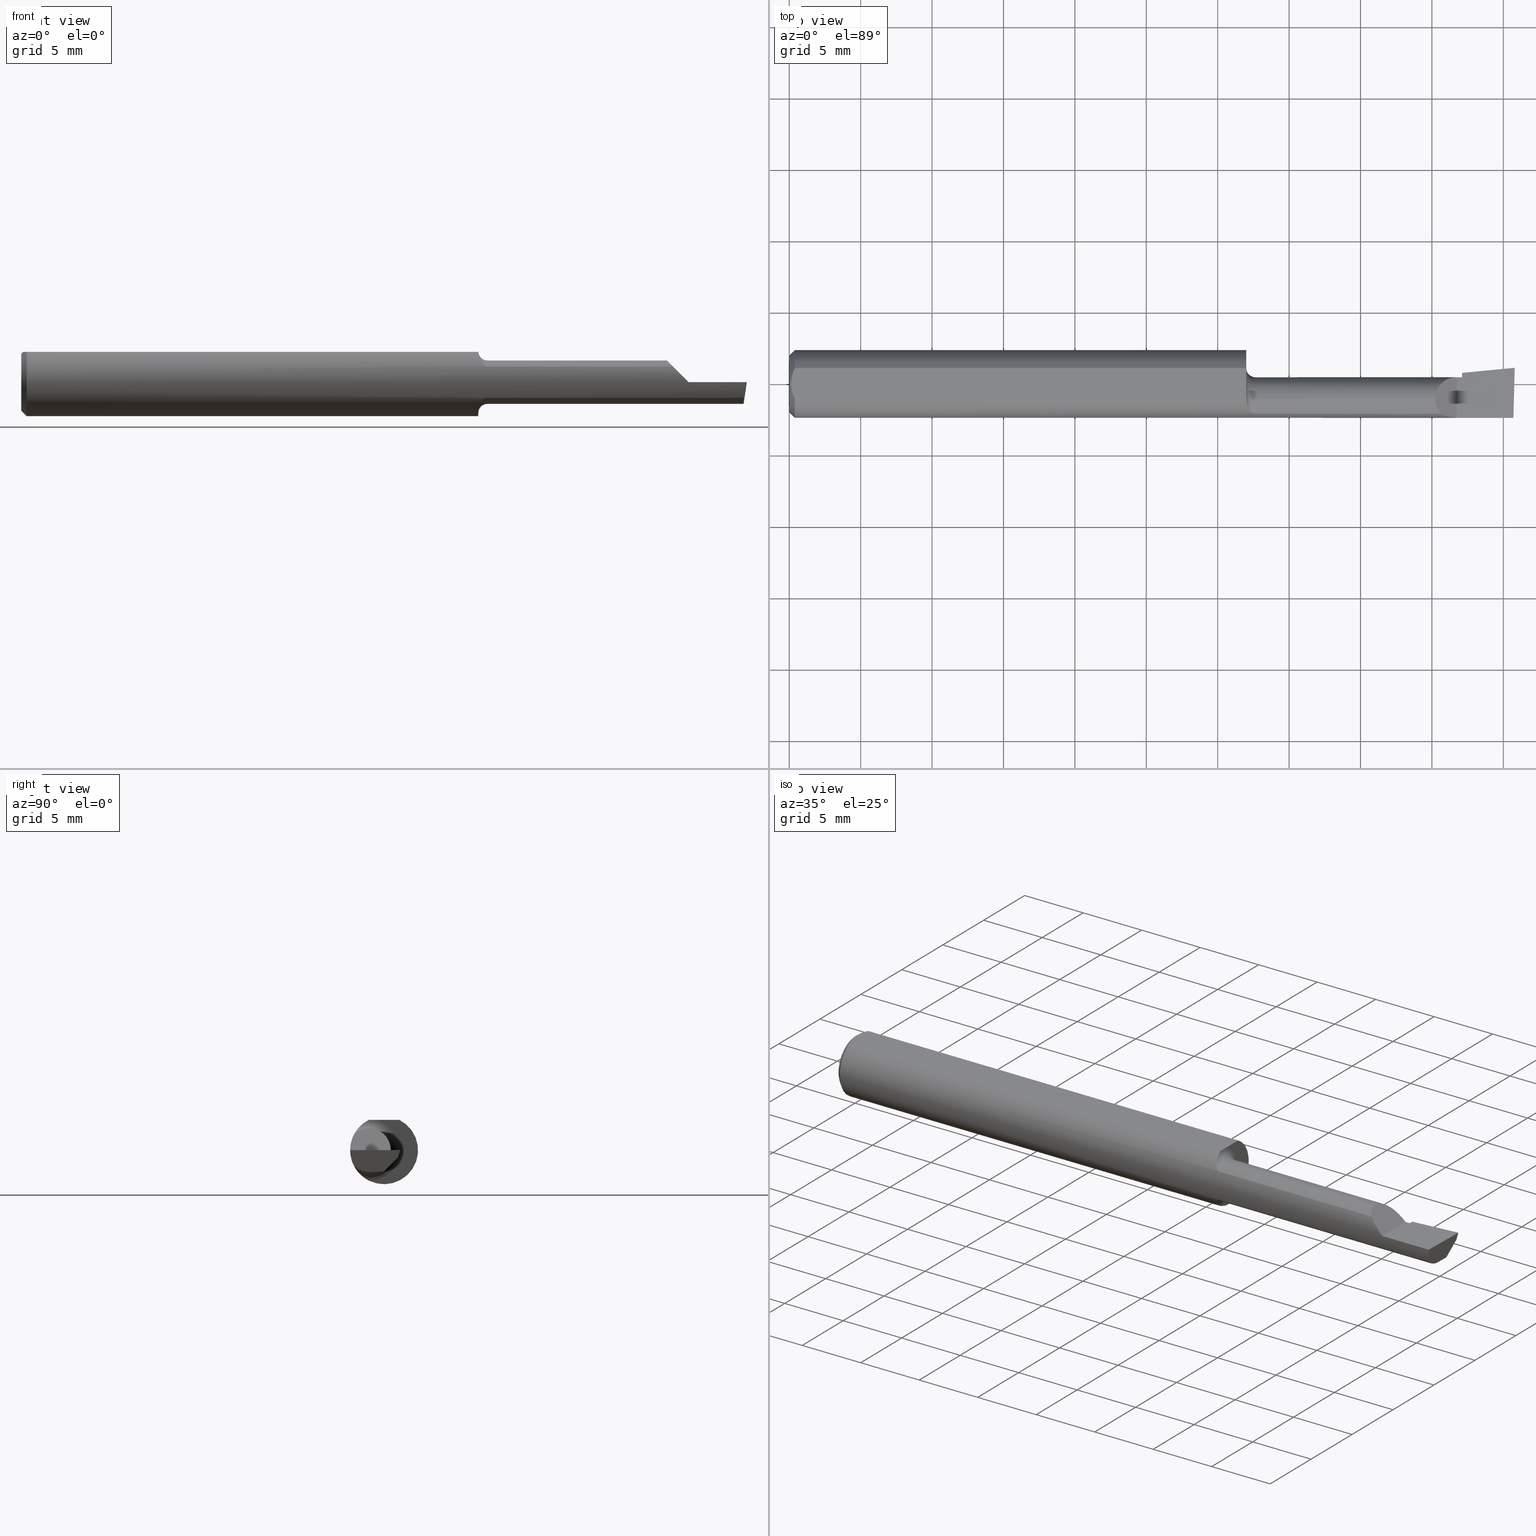
[diagram: canonical four-view strip — front | top / right | iso, engineering-drawing reading convention]
A machine part, canonical four-view strip (front | top / right | iso — engineering-drawing reading convention). The complete STEP part file that produces these views, byte-faithful:
ISO-10303-21;
HEADER;
FILE_DESCRIPTION (( 'STEP AP214' ),
    '1' );
FILE_NAME ('B140700.STEP',
    '2019-07-25T17:27:09',
    ( '' ),
    ( '' ),
    'SwSTEP 2.0',
    'SolidWorks 2018',
    '' );
FILE_SCHEMA (( 'AUTOMOTIVE_DESIGN' ));
ENDSEC;

DATA;
#1 = DIRECTION ( 'NONE',  ( -0.0000000000000000000, 0.0000000000000000000, 1.000000000000000000 ) ) ;
#2 = CARTESIAN_POINT ( 'NONE',  ( 1.854999999999999982, 0.03043808801135922115, 1.030335937757294514E-15 ) ) ;
#3 = VECTOR ( 'NONE', #270, 39.37007874015748854 ) ;
#4 = VERTEX_POINT ( 'NONE', #127 ) ;
#5 = CARTESIAN_POINT ( 'NONE',  ( 1.262429122971264528, -0.06066239981255450858, 0.07149394324265896661 ) ) ;
#6 = AXIS2_PLACEMENT_3D ( 'NONE', #62, #417, #622 ) ;
#7 = CARTESIAN_POINT ( 'NONE',  ( 1.780099999999999349, -0.04150000000000000216, 0.05989999999999997410 ) ) ;
#8 = CARTESIAN_POINT ( 'NONE',  ( 1.107894390816139163, -0.04150000000000000216, 4.217516215662293437E-16 ) ) ;
#9 = DIRECTION ( 'NONE',  ( 0.9953961983671787417, 0.09584575252022466130, -5.467869873542577569E-16 ) ) ;
#10 = ORIENTED_EDGE ( 'NONE', *, *, #164, .T. ) ;
#11 = FACE_OUTER_BOUND ( 'NONE', #129, .T. ) ;
#12 = EDGE_CURVE ( 'NONE', #49, #389, #305, .T. ) ;
#13 = LENGTH_MEASURE_WITH_UNIT ( LENGTH_MEASURE( 0.02539999999999999897 ), #536 );
#14 = PRODUCT_DEFINITION ( 'UNKNOWN', '', #202, #285 ) ;
#15 = ORIENTED_EDGE ( 'NONE', *, *, #298, .T. ) ;
#16 = FACE_OUTER_BOUND ( 'NONE', #644, .T. ) ;
#17 = UNCERTAINTY_MEASURE_WITH_UNIT (LENGTH_MEASURE( 1.000000000000000082E-05 ), #190, 'distance_accuracy_value', 'NONE');
#18 = ORIENTED_EDGE ( 'NONE', *, *, #370, .T. ) ;
#19 = VERTEX_POINT ( 'NONE', #26 ) ;
#20 = ORIENTED_EDGE ( 'NONE', *, *, #590, .F. ) ;
#21 = PRODUCT ( 'B140700', 'B140700', '', ( #330 ) ) ;
#22 = VERTEX_POINT ( 'NONE', #260 ) ;
#23 = FACE_OUTER_BOUND ( 'NONE', #551, .T. ) ;
#24 = CARTESIAN_POINT ( 'NONE',  ( 1.284999999999999920, -0.04149999999999999523, -0.05989999999999994634 ) ) ;
#25 = CARTESIAN_POINT ( 'NONE',  ( 5.659797890829555466E-31, -0.09359999999999998876, 1.030335658007946046E-15 ) ) ;
#26 = CARTESIAN_POINT ( 'NONE',  ( 0.005000000000000236026, 1.025183009042025117E-17, 0.08360000000000000764 ) ) ;
#27 = ORIENTED_EDGE ( 'NONE', *, *, #449, .F. ) ;
#28 = CARTESIAN_POINT ( 'NONE',  ( 1.996386342823452065, -0.09360000000000009979, -6.634435288474567089E-17 ) ) ;
#29 =( CONVERSION_BASED_UNIT ( 'INCH', #569 ) LENGTH_UNIT ( ) NAMED_UNIT ( #425 ) );
#30 = CARTESIAN_POINT ( 'NONE',  ( 1.840000000000000080, 0.01839999999999989908, 1.959434878635762025E-17 ) ) ;
#31 = FACE_OUTER_BOUND ( 'NONE', #564, .T. ) ;
#32 = ORIENTED_EDGE ( 'NONE', *, *, #656, .T. ) ;
#33 = EDGE_CURVE ( 'NONE', #4, #37, #621, .T. ) ;
#34 =( NAMED_UNIT ( * ) SI_UNIT ( $, .STERADIAN. ) SOLID_ANGLE_UNIT ( ) );
#35 = AXIS2_PLACEMENT_3D ( 'NONE', #185, #585, #632 ) ;
#36 = ORIENTED_EDGE ( 'NONE', *, *, #89, .T. ) ;
#37 = VERTEX_POINT ( 'NONE', #24 ) ;
#38 = DIRECTION ( 'NONE',  ( 1.000000000000000000, 0.0000000000000000000, 0.0000000000000000000 ) ) ;
#39 = CARTESIAN_POINT ( 'NONE',  ( 1.854999999999999982, -0.2500000000000000555, 1.135460985248596835E-17 ) ) ;
#40 = EDGE_CURVE ( 'NONE', #275, #218, #147, .T. ) ;
#41 = ORIENTED_EDGE ( 'NONE', *, *, #392, .T. ) ;
#42 = CIRCLE ( 'NONE', #360, 0.09360000000000001652 ) ;
#43 = DIRECTION ( 'NONE',  ( 0.0000000000000000000, -0.6963153109074925462, -0.7177360153954946975 ) ) ;
#44 = AXIS2_PLACEMENT_3D ( 'NONE', #252, #203, #303 ) ;
#45 = CARTESIAN_POINT ( 'NONE',  ( 1.846299648997746123, 0.02345744519840442868, -0.02000000000000000042 ) ) ;
#46 = LINE ( 'NONE', #242, #625 ) ;
#47 = CARTESIAN_POINT ( 'NONE',  ( 1.259999999999999565, -0.04014498638740780084, -0.08455714216888013390 ) ) ;
#48 = DIRECTION ( 'NONE',  ( 0.0000000000000000000, -1.189000693621284344E-16, -1.000000000000000000 ) ) ;
#49 = VERTEX_POINT ( 'NONE', #311 ) ;
#50 = CARTESIAN_POINT ( 'NONE',  ( 1.996083844369372917, -0.0008291687483132151315, -0.05990000000000000185 ) ) ;
#51 = DIRECTION ( 'NONE',  ( -0.02617694830786378504, -0.9996573249755575929, 0.0000000000000000000 ) ) ;
#52 = CARTESIAN_POINT ( 'NONE',  ( 1.260033822879743415, -0.04150000000000000216, 0.08360000000000000764 ) ) ;
#53 = CARTESIAN_POINT ( 'NONE',  ( 1.840000000000000080, -0.2500000000000000555, 1.959434878635762025E-17 ) ) ;
#54 = AXIS2_PLACEMENT_3D ( 'NONE', #238, #490, #290 ) ;
#55 = CARTESIAN_POINT ( 'NONE',  ( 1.269237437666584922, -0.07513599091569019006, -0.05602756047418826907 ) ) ;
#56 = CARTESIAN_POINT ( 'NONE',  ( 1.854999999999999982, 0.03726901833842542755, -0.006627062419125365027 ) ) ;
#57 = ORIENTED_EDGE ( 'NONE', *, *, #615, .F. ) ;
#58 = CARTESIAN_POINT ( 'NONE',  ( 1.267076397983110780, -0.07187891021191493424, -0.06019546731975670972 ) ) ;
#59 = VECTOR ( 'NONE', #243, 39.37007874015748143 ) ;
#60 = EDGE_LOOP ( 'NONE', ( #220, #266, #413, #528, #141 ) ) ;
#61 = ADVANCED_FACE ( 'NONE', ( #23 ), #94, .T. ) ;
#62 = CARTESIAN_POINT ( 'NONE',  ( 0.01499999999999999598, 0.0000000000000000000, 0.0000000000000000000 ) ) ;
#63 = CARTESIAN_POINT ( 'NONE',  ( 1.284999999999999920, -0.04150000000000000216, 0.0000000000000000000 ) ) ;
#64 = ORIENTED_EDGE ( 'NONE', *, *, #559, .F. ) ;
#65 = VERTEX_POINT ( 'NONE', #115 ) ;
#66 = ORIENTED_EDGE ( 'NONE', *, *, #370, .F. ) ;
#67 = AXIS2_PLACEMENT_3D ( 'NONE', #258, #116, #367 ) ;
#68 = CIRCLE ( 'NONE', #633, 0.05989999999999993940 ) ;
#69 = EDGE_CURVE ( 'NONE', #320, #312, #511, .T. ) ;
#70 = ORIENTED_EDGE ( 'NONE', *, *, #525, .F. ) ;
#71 = VECTOR ( 'NONE', #505, 39.37007874015748143 ) ;
#72 = VERTEX_POINT ( 'NONE', #456 ) ;
#73 = CARTESIAN_POINT ( 'NONE',  ( 0.01499999999999999944, -0.04209513035969835587, 0.08360000000000000764 ) ) ;
#74 = EDGE_CURVE ( 'NONE', #22, #389, #200, .T. ) ;
#75 = AXIS2_PLACEMENT_3D ( 'NONE', #640, #642, #230 ) ;
#76 = CARTESIAN_POINT ( 'NONE',  ( 1.259999999999999565, 0.04339999999999993863, 0.0000000000000000000 ) ) ;
#77 = CARTESIAN_POINT ( 'NONE',  ( 0.01499999999999999598, 0.04209513035969837669, 0.08360000000000000764 ) ) ;
#78 =( LENGTH_UNIT ( ) NAMED_UNIT ( * ) SI_UNIT ( $, .METRE. ) );
#79 = DIRECTION ( 'NONE',  ( 0.0000000000000000000, 0.0000000000000000000, -1.000000000000000000 ) ) ;
#80 = CARTESIAN_POINT ( 'NONE',  ( 0.0000000000000000000, 0.0000000000000000000, 0.0000000000000000000 ) ) ;
#81 = CARTESIAN_POINT ( 'NONE',  ( 1.284999999999999920, -0.08307469879518099287, -0.04312255117789263320 ) ) ;
#82 = VERTEX_POINT ( 'NONE', #604 ) ;
#83 = CARTESIAN_POINT ( 'NONE',  ( 1.796877448822106649, -0.08307469879518082634, 0.04312255117789281361 ) ) ;
#84 = DIRECTION ( 'NONE',  ( -1.000000000000000000, -0.0000000000000000000, -0.0000000000000000000 ) ) ;
#85 = VERTEX_POINT ( 'NONE', #493 ) ;
#86 = CARTESIAN_POINT ( 'NONE',  ( 1.854999999999999982, 0.01839999999999999969, 1.030335658007946637E-15 ) ) ;
#87 = LINE ( 'NONE', #435, #429 ) ;
#88 = ORIENTED_EDGE ( 'NONE', *, *, #623, .T. ) ;
#89 = EDGE_CURVE ( 'NONE', #414, #599, #396, .T. ) ;
#90 = VECTOR ( 'NONE', #508, 39.37007874015748854 ) ;
#91 = ORIENTED_EDGE ( 'NONE', *, *, #582, .T. ) ;
#92 = CARTESIAN_POINT ( 'NONE',  ( 1.840000000000000080, 0.01839999999999989908, 1.959434878635762025E-17 ) ) ;
#93 = DIRECTION ( 'NONE',  ( 1.000000000000000000, 0.0000000000000000000, 0.0000000000000000000 ) ) ;
#94 = CONICAL_SURFACE ( 'NONE', #6, 0.09360000000000001652, 0.7853981633974601584 ) ;
#95 = CARTESIAN_POINT ( 'NONE',  ( 1.260033822879743193, -0.04159918775969437960, 0.08360000000000000764 ) ) ;
#96 = CARTESIAN_POINT ( 'NONE',  ( 1.260163936266268214, -0.04714148439307228738, 0.08105900800387486060 ) ) ;
#97 = CARTESIAN_POINT ( 'NONE',  ( 2.000000000000000000, 0.1436000000000000332, 0.08359999999999999376 ) ) ;
#98 = CARTESIAN_POINT ( 'NONE',  ( 1.260033822879743415, -0.04150000000000000216, 0.08360000000000000764 ) ) ;
#99 = CARTESIAN_POINT ( 'NONE',  ( 1.259999999999999565, 0.04209513035969836975, 0.08360000000000000764 ) ) ;
#100 = DIRECTION ( 'NONE',  ( 0.0000000000000000000, 0.0000000000000000000, 1.000000000000000000 ) ) ;
#101 = DIRECTION ( 'NONE',  ( 0.02617694830786378504, 0.9996573249755575929, -1.459184416195593542E-17 ) ) ;
#102 = UNCERTAINTY_MEASURE_WITH_UNIT (LENGTH_MEASURE( 1.000000000000000082E-05 ), #279, 'distance_accuracy_value', 'NONE');
#103 = ORIENTED_EDGE ( 'NONE', *, *, #313, .T. ) ;
#104 = EDGE_CURVE ( 'NONE', #596, #82, #607, .T. ) ;
#105 = CARTESIAN_POINT ( 'NONE',  ( 1.263605992736883454, -0.06448586599545334808, -0.06805619079784631931 ) ) ;
#106 = CARTESIAN_POINT ( 'NONE',  ( 1.260010473476444126, -0.03163306423249844651, 0.08360000000000000764 ) ) ;
#107 = LINE ( 'NONE', #25, #359 ) ;
#108 = VERTEX_POINT ( 'NONE', #347 ) ;
#109 = EDGE_CURVE ( 'NONE', #108, #414, #454, .T. ) ;
#110 = ORIENTED_EDGE ( 'NONE', *, *, #355, .T. ) ;
#111 = ORIENTED_EDGE ( 'NONE', *, *, #364, .T. ) ;
#112 = SURFACE_STYLE_FILL_AREA ( #483 ) ;
#113 = ADVANCED_FACE ( 'NONE', ( #654 ), #657, .T. ) ;
#114 = ORIENTED_EDGE ( 'NONE', *, *, #40, .F. ) ;
#115 = CARTESIAN_POINT ( 'NONE',  ( 0.0000000000000000000, 0.0000000000000000000, -0.07859999999999965625 ) ) ;
#116 = DIRECTION ( 'NONE',  ( -1.000000000000000000, -0.0000000000000000000, -0.0000000000000000000 ) ) ;
#117 = ADVANCED_FACE ( 'NONE', ( #11 ), #484, .T. ) ;
#118 = VECTOR ( 'NONE', #9, 39.37007874015748143 ) ;
#119 = VERTEX_POINT ( 'NONE', #195 ) ;
#120 = ADVANCED_FACE ( 'NONE', ( #212 ), #345, .F. ) ;
#121 = DIRECTION ( 'NONE',  ( 1.000000000000000000, 0.0000000000000000000, 0.0000000000000000000 ) ) ;
#122 = ORIENTED_EDGE ( 'NONE', *, *, #373, .F. ) ;
#123 = B_SPLINE_CURVE_WITH_KNOTS ( 'NONE', 3,
 ( #179, #182, #581, #224, #324, #77 ),
 .UNSPECIFIED., .F., .F.,
 ( 4, 2, 4 ),
 ( 0.006881281100865560205, 0.007427683811376459971, 0.007974086521887359738 ),
 .UNSPECIFIED. ) ;
#124 = ORIENTED_EDGE ( 'NONE', *, *, #363, .F. ) ;
#125 = AXIS2_PLACEMENT_3D ( 'NONE', #432, #327, #139 ) ;
#126 = DIMENSIONAL_EXPONENTS ( 1.000000000000000000, 0.0000000000000000000, 0.0000000000000000000, 0.0000000000000000000, 0.0000000000000000000, 0.0000000000000000000, 0.0000000000000000000 ) ;
#127 = CARTESIAN_POINT ( 'NONE',  ( 1.284999999999999920, -0.04150000000000000216, 0.05989999999999994634 ) ) ;
#128 = CARTESIAN_POINT ( 'NONE',  ( 0.005000000000000227353, -0.007328888879231044290, 0.08360000000000000764 ) ) ;
#129 = EDGE_LOOP ( 'NONE', ( #636, #211, #408, #639, #18 ) ) ;
#130 = VERTEX_POINT ( 'NONE', #652 ) ;
#131 = LENGTH_MEASURE_WITH_UNIT ( LENGTH_MEASURE( 0.02539999999999999897 ), #538 );
#132 = CARTESIAN_POINT ( 'NONE',  ( 0.0000000000000000000, -0.04150000000000000216, 0.0000000000000000000 ) ) ;
#133 = ORIENTED_EDGE ( 'NONE', *, *, #465, .T. ) ;
#134 = CARTESIAN_POINT ( 'NONE',  ( 1.854999999999999982, -0.04150000000000000216, -0.05990000000000000185 ) ) ;
#135 = UNCERTAINTY_MEASURE_WITH_UNIT (LENGTH_MEASURE( 1.000000000000000082E-05 ), #29, 'distance_accuracy_value', 'NONE');
#136 = CARTESIAN_POINT ( 'NONE',  ( 0.01499999999999999598, 0.0000000000000000000, 0.0000000000000000000 ) ) ;
#137 = AXIS2_PLACEMENT_3D ( 'NONE', #189, #283, #542 ) ;
#138 = ORIENTED_EDGE ( 'NONE', *, *, #208, .F. ) ;
#139 = DIRECTION ( 'NONE',  ( 0.0000000000000000000, 0.0000000000000000000, 1.000000000000000000 ) ) ;
#140 = VECTOR ( 'NONE', #651, 39.37007874015748143 ) ;
#141 = ORIENTED_EDGE ( 'NONE', *, *, #566, .F. ) ;
#142 =( NAMED_UNIT ( * ) PLANE_ANGLE_UNIT ( ) SI_UNIT ( $, .RADIAN. ) );
#143 = EDGE_CURVE ( 'NONE', #271, #151, #341, .T. ) ;
#144 = CARTESIAN_POINT ( 'NONE',  ( 1.996386342823452065, -0.09360000000000009979, -6.634435288474567089E-17 ) ) ;
#145 = CARTESIAN_POINT ( 'NONE',  ( 1.804911392386147506, 0.01839999999999996499, 0.03508860761385158150 ) ) ;
#146 = ORIENTED_EDGE ( 'NONE', *, *, #628, .F. ) ;
#147 = CIRCLE ( 'NONE', #67, 0.05990000000000000185 ) ;
#148 = EDGE_CURVE ( 'NONE', #271, #85, #434, .T. ) ;
#149 = CARTESIAN_POINT ( 'NONE',  ( 1.854999999999999982, 0.03043808801135671968, 0.0000000000000000000 ) ) ;
#150 = MECHANICAL_DESIGN_GEOMETRIC_PRESENTATION_REPRESENTATION (  '', ( #365 ), #552 ) ;
#151 = VERTEX_POINT ( 'NONE', #81 ) ;
#152 = DIRECTION ( 'NONE',  ( -0.0000000000000000000, 0.0000000000000000000, 1.000000000000000000 ) ) ;
#153 = VECTOR ( 'NONE', #501, 39.37007874015748143 ) ;
#154 = ORIENTED_EDGE ( 'NONE', *, *, #491, .T. ) ;
#155 = CARTESIAN_POINT ( 'NONE',  ( 1.275413575230741392, -0.08042664989321215985, 0.04791921015141199086 ) ) ;
#156 = DIRECTION ( 'NONE',  ( -1.000000000000000000, -0.0000000000000000000, -0.0000000000000000000 ) ) ;
#157 = ORIENTED_EDGE ( 'NONE', *, *, #109, .F. ) ;
#158 = EDGE_LOOP ( 'NONE', ( #572, #173, #626, #239, #452, #27 ) ) ;
#159 = CARTESIAN_POINT ( 'NONE',  ( 0.0000000000000000000, -0.04150000000000000216, 0.0000000000000000000 ) ) ;
#160 = CARTESIAN_POINT ( 'NONE',  ( 1.854999999999999982, 0.02429519371539584291, -0.02000000000000000042 ) ) ;
#161 = FILL_AREA_STYLE_COLOUR ( '', #431 ) ;
#162 = CARTESIAN_POINT ( 'NONE',  ( 1.259999999999999565, -0.03946024096385555846, -0.08487549341873928954 ) ) ;
#163 = CARTESIAN_POINT ( 'NONE',  ( 1.260121283746728382, -0.04659318327468393167, -0.08137765652544190487 ) ) ;
#164 = EDGE_CURVE ( 'NONE', #108, #37, #407, .T. ) ;
#165 = ORIENTED_EDGE ( 'NONE', *, *, #264, .T. ) ;
#166 = ORIENTED_EDGE ( 'NONE', *, *, #628, .T. ) ;
#167 = VECTOR ( 'NONE', #479, 39.37007874015748143 ) ;
#168 = ORIENTED_EDGE ( 'NONE', *, *, #428, .T. ) ;
#169 = LINE ( 'NONE', #556, #550 ) ;
#170 = ORIENTED_EDGE ( 'NONE', *, *, #40, .T. ) ;
#171 = ADVANCED_FACE ( 'NONE', ( #597 ), #482, .F. ) ;
#172 = ADVANCED_FACE ( 'NONE', ( #464 ), #646, .F. ) ;
#173 = ORIENTED_EDGE ( 'NONE', *, *, #69, .T. ) ;
#174 = EDGE_LOOP ( 'NONE', ( #32, #10, #336 ) ) ;
#175 = B_SPLINE_CURVE_WITH_KNOTS ( 'NONE', 3,
 ( #296, #209, #356, #499, #361, #55, #58, #105, #459, #562, #163, #509 ),
 .UNSPECIFIED., .F., .F.,
 ( 4, 2, 2, 2, 2, 4 ),
 ( 1.963546462201886234E-07, 0.0002171101490734188245, 0.0004340239435006174929, 0.0008678515323550143419, 0.001301679121209411245, 0.001735506710063808473 ),
 .UNSPECIFIED. ) ;
#176 = AXIS2_PLACEMENT_3D ( 'NONE', #63, #349, #100 ) ;
#177 = CYLINDRICAL_SURFACE ( 'NONE', #214, 0.05989999999999997410 ) ;
#178 = CYLINDRICAL_SURFACE ( 'NONE', #302, 0.05989999999999997410 ) ;
#179 = CARTESIAN_POINT ( 'NONE',  ( 0.005000000000000236026, 1.025183009042025117E-17, 0.08360000000000000764 ) ) ;
#180 = EDGE_CURVE ( 'NONE', #218, #424, #488, .T. ) ;
#181 = AXIS2_PLACEMENT_3D ( 'NONE', #97, #48, #457 ) ;
#182 = CARTESIAN_POINT ( 'NONE',  ( 0.005000000000000225618, 0.007308422719211825694, 0.08360000000000000764 ) ) ;
#183 = LINE ( 'NONE', #53, #580 ) ;
#184 = CARTESIAN_POINT ( 'NONE',  ( 1.284999999999999920, -0.04150000000000000216, 0.0000000000000000000 ) ) ;
#185 = CARTESIAN_POINT ( 'NONE',  ( 1.259999999999999565, -0.04150000000000000216, 0.0000000000000000000 ) ) ;
#186 = DIRECTION ( 'NONE',  ( -0.9922060308645496152, 0.02598182930468405372, 0.1218693434051347224 ) ) ;
#187 = ORIENTED_EDGE ( 'NONE', *, *, #33, .F. ) ;
#188 = DIRECTION ( 'NONE',  ( 0.7071067811865391350, 8.659560562355035164E-17, 0.7071067811865558994 ) ) ;
#189 = CARTESIAN_POINT ( 'NONE',  ( 0.0000000000000000000, 0.0000000000000000000, 0.0000000000000000000 ) ) ;
#190 =( CONVERSION_BASED_UNIT ( 'INCH', #131 ) LENGTH_UNIT ( ) NAMED_UNIT ( #573 ) );
#191 = AXIS2_PLACEMENT_3D ( 'NONE', #450, #93, #343 ) ;
#192 = LINE ( 'NONE', #380, #210 ) ;
#193 =( GEOMETRIC_REPRESENTATION_CONTEXT ( 3 ) GLOBAL_UNCERTAINTY_ASSIGNED_CONTEXT ( ( #102 ) ) GLOBAL_UNIT_ASSIGNED_CONTEXT ( ( #279, #460, #278 ) ) REPRESENTATION_CONTEXT ( 'NONE', 'WORKASPACE' ) );
#194 = LINE ( 'NONE', #39, #578 ) ;
#195 = CARTESIAN_POINT ( 'NONE',  ( 0.01499999999999999598, 0.0000000000000000000, -0.09360000000000001652 ) ) ;
#196 = ORIENTED_EDGE ( 'NONE', *, *, #164, .F. ) ;
#197 = DIRECTION ( 'NONE',  ( -1.000000000000000000, 0.0000000000000000000, -0.0000000000000000000 ) ) ;
#198 = VECTOR ( 'NONE', #292, 39.37007874015748854 ) ;
#199 = CARTESIAN_POINT ( 'NONE',  ( 1.569999999999999840, -0.08307469879518077083, -0.04312255117789288994 ) ) ;
#200 =( BOUNDED_CURVE ( )  B_SPLINE_CURVE ( 3, ( #405, #427, #223, #332 ),
 .UNSPECIFIED., .F., .F. ) 
 B_SPLINE_CURVE_WITH_KNOTS ( ( 4, 4 ),
 ( 4.712388980384689674, 5.191185112936686608 ),
 .UNSPECIFIED. ) 
 CURVE ( )  GEOMETRIC_REPRESENTATION_ITEM ( )  RATIONAL_B_SPLINE_CURVE ( ( 1.000000000000000000, 0.9809872534005956712, 0.9809872534005956712, 1.000000000000000000 ) ) 
 REPRESENTATION_ITEM ( '' )  );
#201 = ORIENTED_EDGE ( 'NONE', *, *, #33, .T. ) ;
#202 = PRODUCT_DEFINITION_FORMATION_WITH_SPECIFIED_SOURCE ( 'ANY', '', #21, .NOT_KNOWN. ) ;
#203 = DIRECTION ( 'NONE',  ( -1.000000000000000000, -0.0000000000000000000, -0.0000000000000000000 ) ) ;
#204 = PLANE ( 'NONE',  #527 ) ;
#205 = DIRECTION ( 'NONE',  ( 0.0000000000000000000, -1.000000000000000000, 0.0000000000000000000 ) ) ;
#206 = CARTESIAN_POINT ( 'NONE',  ( 2.000000000000000000, -0.04150000000000000216, -0.05990000000000000185 ) ) ;
#207 = DIRECTION ( 'NONE',  ( 0.0000000000000000000, 0.0000000000000000000, 1.000000000000000000 ) ) ;
#208 = EDGE_CURVE ( 'NONE', #119, #375, #42, .T. ) ;
#209 = CARTESIAN_POINT ( 'NONE',  ( 1.282100790213033914, -0.08307469879518096512, -0.04312255117789257769 ) ) ;
#210 = VECTOR ( 'NONE', #188, 39.37007874015748143 ) ;
#211 = ORIENTED_EDGE ( 'NONE', *, *, #623, .F. ) ;
#212 = FACE_OUTER_BOUND ( 'NONE', #472, .T. ) ;
#213 = ORIENTED_EDGE ( 'NONE', *, *, #476, .T. ) ;
#214 = AXIS2_PLACEMENT_3D ( 'NONE', #159, #348, #400 ) ;
#215 = ADVANCED_FACE ( 'NONE', ( #265 ), #539, .F. ) ;
#216 = ORIENTED_EDGE ( 'NONE', *, *, #363, .T. ) ;
#217 =( BOUNDED_CURVE ( )  B_SPLINE_CURVE ( 3, ( #225, #222, #577, #28 ),
 .UNSPECIFIED., .F., .F. ) 
 B_SPLINE_CURVE_WITH_KNOTS ( ( 4, 4 ),
 ( 0.8819507499627846636, 1.360746882514781042 ),
 .UNSPECIFIED. ) 
 CURVE ( )  GEOMETRIC_REPRESENTATION_ITEM ( )  RATIONAL_B_SPLINE_CURVE ( ( 1.000000000000000000, 0.9809872534005956712, 0.9809872534005956712, 1.000000000000000000 ) ) 
 REPRESENTATION_ITEM ( '' )  );
#218 = VERTEX_POINT ( 'NONE', #134 ) ;
#219 = LINE ( 'NONE', #291, #90 ) ;
#220 = ORIENTED_EDGE ( 'NONE', *, *, #476, .F. ) ;
#221 = AXIS2_PLACEMENT_3D ( 'NONE', #136, #534, #272 ) ;
#222 = CARTESIAN_POINT ( 'NONE',  ( 1.992827658777091893, -0.09002356847881787250, -0.02973569812382168345 ) ) ;
#223 = CARTESIAN_POINT ( 'NONE',  ( 1.810264301876177928, -0.09002356847881790025, 0.02973569812382162794 ) ) ;
#224 = CARTESIAN_POINT ( 'NONE',  ( 0.009492654797564338900, 0.02859466010166627700, 0.08360000000000000764 ) ) ;
#225 = CARTESIAN_POINT ( 'NONE',  ( 1.991365359011875169, -0.08307469879518077083, -0.04312255117789288994 ) ) ;
#226 = DIRECTION ( 'NONE',  ( 0.0000000000000000000, 0.0000000000000000000, -1.000000000000000000 ) ) ;
#227 = DIRECTION ( 'NONE',  ( -1.000000000000000000, -0.0000000000000000000, -0.0000000000000000000 ) ) ;
#228 = CARTESIAN_POINT ( 'NONE',  ( 1.854999999999999982, -0.04150000000000000216, -0.05990000000000000185 ) ) ;
#229 = CARTESIAN_POINT ( 'NONE',  ( 1.284999999999999920, -0.04150000000000000216, 0.0000000000000000000 ) ) ;
#230 = DIRECTION ( 'NONE',  ( -0.7071067811865516806, 0.0000000000000000000, 0.7071067811865433539 ) ) ;
#231 = ORIENTED_EDGE ( 'NONE', *, *, #148, .T. ) ;
#232 = CARTESIAN_POINT ( 'NONE',  ( 1.991365359011875169, -0.08307469879518077083, -0.04312255117789288994 ) ) ;
#233 = EDGE_LOOP ( 'NONE', ( #535, #591, #114, #165, #294 ) ) ;
#234 = CARTESIAN_POINT ( 'NONE',  ( 1.780099999999999349, -0.04150000000000000216, 0.05989999999999997410 ) ) ;
#235 = FACE_OUTER_BOUND ( 'NONE', #158, .T. ) ;
#236 = VERTEX_POINT ( 'NONE', #399 ) ;
#237 = ORIENTED_EDGE ( 'NONE', *, *, #12, .T. ) ;
#238 = CARTESIAN_POINT ( 'NONE',  ( 0.01499999999999999598, 0.0000000000000000000, 0.0000000000000000000 ) ) ;
#239 = ORIENTED_EDGE ( 'NONE', *, *, #264, .F. ) ;
#240 =( BOUNDED_CURVE ( )  B_SPLINE_CURVE ( 3, ( #390, #650, #145, #92 ),
 .UNSPECIFIED., .F., .T. ) 
 B_SPLINE_CURVE_WITH_KNOTS ( ( 4, 4 ),
 ( 0.0000000000000000000, 1.570796326794896558 ),
 .UNSPECIFIED. ) 
 CURVE ( )  GEOMETRIC_REPRESENTATION_ITEM ( )  RATIONAL_B_SPLINE_CURVE ( ( 1.000000000000000000, 0.8047378541243649375, 0.8047378541243649375, 1.000000000000000000 ) ) 
 REPRESENTATION_ITEM ( '' )  );
#241 = PRESENTATION_STYLE_ASSIGNMENT (( #384 ) ) ;
#242 = CARTESIAN_POINT ( 'NONE',  ( 0.0000000000000000000, 0.04209513035969837669, 0.08360000000000000764 ) ) ;
#243 = DIRECTION ( 'NONE',  ( 1.000000000000000000, 0.0000000000000000000, 0.0000000000000000000 ) ) ;
#244 = DIRECTION ( 'NONE',  ( -1.000000000000000000, -0.0000000000000000000, -0.0000000000000000000 ) ) ;
#245 = EDGE_LOOP ( 'NONE', ( #88, #519 ) ) ;
#246 = CARTESIAN_POINT ( 'NONE',  ( 1.284999999999999920, -0.04150000000000000216, 0.0000000000000000000 ) ) ;
#247 = DIRECTION ( 'NONE',  ( 0.0000000000000000000, 0.0000000000000000000, 1.000000000000000000 ) ) ;
#248 = DIRECTION ( 'NONE',  ( 0.0000000000000000000, 0.0000000000000000000, 1.000000000000000000 ) ) ;
#249 = ORIENTED_EDGE ( 'NONE', *, *, #74, .F. ) ;
#250 = CARTESIAN_POINT ( 'NONE',  ( 1.991446623798936333, -0.001275682303322550441, -0.05990000000000000185 ) ) ;
#251 = AXIS2_PLACEMENT_3D ( 'NONE', #382, #84, #480 ) ;
#252 = CARTESIAN_POINT ( 'NONE',  ( 1.284999999999999920, -0.04150000000000000216, 0.0000000000000000000 ) ) ;
#253 = DIRECTION ( 'NONE',  ( -1.000000000000000000, -0.0000000000000000000, -0.0000000000000000000 ) ) ;
#254 = PRESENTATION_LAYER_ASSIGNMENT (  '', '', ( #416 ) ) ;
#255 = ORIENTED_EDGE ( 'NONE', *, *, #344, .T. ) ;
#256 = LINE ( 'NONE', #455, #59 ) ;
#257 = ORIENTED_EDGE ( 'NONE', *, *, #544, .F. ) ;
#258 = CARTESIAN_POINT ( 'NONE',  ( 1.854999999999999982, -0.04150000000000000216, 0.0000000000000000000 ) ) ;
#259 = ADVANCED_FACE ( 'NONE', ( #649 ), #282, .F. ) ;
#260 = CARTESIAN_POINT ( 'NONE',  ( 1.840000000000000080, -0.09360000000000005815, 1.959434878635762025E-17 ) ) ;
#261 = LINE ( 'NONE', #297, #603 ) ;
#262 = ADVANCED_FACE ( 'NONE', ( #235 ), #337, .F. ) ;
#263 = ORIENTED_EDGE ( 'NONE', *, *, #615, .T. ) ;
#264 = EDGE_CURVE ( 'NONE', #275, #495, #194, .T. ) ;
#265 = FACE_OUTER_BOUND ( 'NONE', #316, .T. ) ;
#266 = ORIENTED_EDGE ( 'NONE', *, *, #574, .F. ) ;
#267 = ORIENTED_EDGE ( 'NONE', *, *, #344, .F. ) ;
#268 = DIRECTION ( 'NONE',  ( 0.0000000000000000000, 0.0000000000000000000, 1.000000000000000000 ) ) ;
#269 = ORIENTED_EDGE ( 'NONE', *, *, #373, .T. ) ;
#270 = DIRECTION ( 'NONE',  ( 0.9953961983671800740, 0.09584575252021028391, -0.0000000000000000000 ) ) ;
#271 = VERTEX_POINT ( 'NONE', #438 ) ;
#272 = DIRECTION ( 'NONE',  ( 0.0000000000000000000, 0.0000000000000000000, 1.000000000000000000 ) ) ;
#273 = AXIS2_PLACEMENT_3D ( 'NONE', #563, #156, #351 ) ;
#274 = LINE ( 'NONE', #619, #467 ) ;
#275 = VERTEX_POINT ( 'NONE', #86 ) ;
#276 = DIRECTION ( 'NONE',  ( 1.000000000000000000, 0.0000000000000000000, 0.0000000000000000000 ) ) ;
#277 = FILL_AREA_STYLE ('',( #161 ) ) ;
#278 =( NAMED_UNIT ( * ) SI_UNIT ( $, .STERADIAN. ) SOLID_ANGLE_UNIT ( ) );
#279 =( CONVERSION_BASED_UNIT ( 'INCH', #13 ) LENGTH_UNIT ( ) NAMED_UNIT ( #126 ) );
#280 = ORIENTED_EDGE ( 'NONE', *, *, #364, .F. ) ;
#281 = ORIENTED_EDGE ( 'NONE', *, *, #524, .T. ) ;
#282 = PLANE ( 'NONE',  #314 ) ;
#283 = DIRECTION ( 'NONE',  ( -1.000000000000000000, -0.0000000000000000000, -0.0000000000000000000 ) ) ;
#284 = AXIS2_PLACEMENT_3D ( 'NONE', #334, #586, #641 ) ;
#285 = PRODUCT_DEFINITION_CONTEXT ( 'detailed design', #593, 'design' ) ;
#286 = EDGE_LOOP ( 'NONE', ( #196, #420, #267, #281, #263, #201 ) ) ;
#287 = CARTESIAN_POINT ( 'NONE',  ( 2.000000000000000000, -0.2500000000000000555, -6.829619984160658046E-17 ) ) ;
#288 = CARTESIAN_POINT ( 'NONE',  ( 1.259999999999999565, -0.03946024096385555846, -0.08487549341873928954 ) ) ;
#289 = LINE ( 'NONE', #8, #118 ) ;
#290 = DIRECTION ( 'NONE',  ( 0.0000000000000000000, 0.0000000000000000000, -1.000000000000000000 ) ) ;
#291 = CARTESIAN_POINT ( 'NONE',  ( 1.997070849775917090, 0.03726070829764477343, -0.02232578418208201049 ) ) ;
#292 = DIRECTION ( 'NONE',  ( 0.0000000000000000000, 0.6963153109074925462, 0.7177360153954946975 ) ) ;
#293 = EDGE_LOOP ( 'NONE', ( #36, #463, #255 ) ) ;
#294 = ORIENTED_EDGE ( 'NONE', *, *, #491, .F. ) ;
#295 = CARTESIAN_POINT ( 'NONE',  ( 1.269277238843510514, -0.07518688180261752507, 0.05595855205958084888 ) ) ;
#296 = CARTESIAN_POINT ( 'NONE',  ( 1.284999999999999920, -0.08307469879518099287, -0.04312255117789263320 ) ) ;
#297 = CARTESIAN_POINT ( 'NONE',  ( 0.0000000000000000000, -0.04149999999999999523, -0.05989999999999997410 ) ) ;
#298 = EDGE_CURVE ( 'NONE', #629, #376, #240, .T. ) ;
#299 = CARTESIAN_POINT ( 'NONE',  ( 1.267169981117899580, -0.07201923175886891515, 0.06001882546782343758 ) ) ;
#300 = DIRECTION ( 'NONE',  ( -1.000000000000000000, -0.0000000000000000000, -0.0000000000000000000 ) ) ;
#301 = CARTESIAN_POINT ( 'NONE',  ( 1.273723886093657054, -0.07921817987507924486, 0.04991299092652125291 ) ) ;
#302 = AXIS2_PLACEMENT_3D ( 'NONE', #132, #227, #268 ) ;
#303 = DIRECTION ( 'NONE',  ( 0.0000000000000000000, 0.0000000000000000000, 1.000000000000000000 ) ) ;
#304 = PLANE ( 'NONE',  #181 ) ;
#305 = LINE ( 'NONE', #422, #426 ) ;
#306 = CIRCLE ( 'NONE', #379, 0.07859999999999965625 ) ;
#307 = CYLINDRICAL_SURFACE ( 'NONE', #137, 0.09360000000000001652 ) ;
#308 = ADVANCED_FACE ( 'NONE', ( #371 ), #307, .T. ) ;
#309 = SURFACE_STYLE_FILL_AREA ( #277 ) ;
#310 = MECHANICAL_DESIGN_GEOMETRIC_PRESENTATION_REPRESENTATION (  '', ( #416 ), #516 ) ;
#311 = CARTESIAN_POINT ( 'NONE',  ( 1.284999999999999920, -0.08307469879518063205, 0.04312255117789297321 ) ) ;
#312 = VERTEX_POINT ( 'NONE', #441 ) ;
#313 = EDGE_CURVE ( 'NONE', #72, #402, #446, .T. ) ;
#314 = AXIS2_PLACEMENT_3D ( 'NONE', #206, #1, #447 ) ;
#315 = LINE ( 'NONE', #589, #616 ) ;
#316 = EDGE_LOOP ( 'NONE', ( #57, #647, #423, #111 ) ) ;
#317 = EDGE_CURVE ( 'NONE', #389, #629, #333, .T. ) ;
#318 = VECTOR ( 'NONE', #533, 39.37007874015748143 ) ;
#319 = CARTESIAN_POINT ( 'NONE',  ( 1.846299648997746123, 0.02345744519840442868, -0.02000000000000000042 ) ) ;
#320 = VERTEX_POINT ( 'NONE', #144 ) ;
#321 = CARTESIAN_POINT ( 'NONE',  ( 0.005000000000000236026, 1.025183009042025117E-17, 0.08360000000000000764 ) ) ;
#322 = LINE ( 'NONE', #56, #198 ) ;
#323 = PLANE ( 'NONE',  #75 ) ;
#324 = CARTESIAN_POINT ( 'NONE',  ( 0.01203648650249651043, 0.03550565407121124978, 0.08360000000000000764 ) ) ;
#325 = SHAPE_DEFINITION_REPRESENTATION ( #613, #497 ) ;
#326 = SURFACE_SIDE_STYLE ('',( #309 ) ) ;
#327 = DIRECTION ( 'NONE',  ( -0.0000000000000000000, 1.000000000000000000, 1.224646799147353207E-16 ) ) ;
#328 = DIRECTION ( 'NONE',  ( 1.000000000000000000, 0.0000000000000000000, 0.0000000000000000000 ) ) ;
#329 = CARTESIAN_POINT ( 'NONE',  ( 0.01499999999999999598, 0.0000000000000000000, 0.0000000000000000000 ) ) ;
#330 = PRODUCT_CONTEXT ( 'NONE', #387, 'mechanical' ) ;
#331 = PRODUCT_RELATED_PRODUCT_CATEGORY ( 'part', '', ( #21 ) ) ;
#332 = CARTESIAN_POINT ( 'NONE',  ( 1.796877448822106649, -0.08307469879518082634, 0.04312255117789281361 ) ) ;
#333 =( BOUNDED_CURVE ( )  B_SPLINE_CURVE ( 3, ( #340, #594, #487, #234 ),
 .UNSPECIFIED., .F., .F. ) 
 B_SPLINE_CURVE_WITH_KNOTS ( ( 4, 4 ),
 ( 5.516060229395656656, 6.283185307179586232 ),
 .UNSPECIFIED. ) 
 CURVE ( )  GEOMETRIC_REPRESENTATION_ITEM ( )  RATIONAL_B_SPLINE_CURVE ( ( 1.000000000000000000, 0.9515582177473687064, 0.9515582177473687064, 1.000000000000000000 ) ) 
 REPRESENTATION_ITEM ( '' )  );
#334 = CARTESIAN_POINT ( 'NONE',  ( 1.845713589253087594, 0.02954390835936741844, -6.829619984160658046E-17 ) ) ;
#335 = SURFACE_SIDE_STYLE ('',( #112 ) ) ;
#336 = ORIENTED_EDGE ( 'NONE', *, *, #566, .T. ) ;
#337 = PLANE ( 'NONE',  #391 ) ;
#338 = LINE ( 'NONE', #637, #167 ) ;
#339 = ORIENTED_EDGE ( 'NONE', *, *, #515, .T. ) ;
#340 = CARTESIAN_POINT ( 'NONE',  ( 1.796877448822106649, -0.08307469879518082634, 0.04312255117789281361 ) ) ;
#341 = LINE ( 'NONE', #199, #71 ) ;
#342 = ORIENTED_EDGE ( 'NONE', *, *, #656, .F. ) ;
#343 = DIRECTION ( 'NONE',  ( 0.0000000000000000000, 0.0000000000000000000, -1.000000000000000000 ) ) ;
#344 = EDGE_CURVE ( 'NONE', #130, #414, #473, .T. ) ;
#345 = PLANE ( 'NONE',  #648 ) ;
#346 = AXIS2_PLACEMENT_3D ( 'NONE', #659, #244, #248 ) ;
#347 = CARTESIAN_POINT ( 'NONE',  ( 1.260020127471513041, -0.04149999999999998135, -0.08389702020930184245 ) ) ;
#348 = DIRECTION ( 'NONE',  ( -1.000000000000000000, -0.0000000000000000000, -0.0000000000000000000 ) ) ;
#349 = DIRECTION ( 'NONE',  ( -1.000000000000000000, -0.0000000000000000000, -0.0000000000000000000 ) ) ;
#350 = CARTESIAN_POINT ( 'NONE',  ( 1.260027419345087329, -0.03656676420729541160, 0.08359999999999997988 ) ) ;
#351 = DIRECTION ( 'NONE',  ( 0.0000000000000000000, 0.0000000000000000000, 1.000000000000000000 ) ) ;
#352 = ORIENTED_EDGE ( 'NONE', *, *, #89, .F. ) ;
#353 = CARTESIAN_POINT ( 'NONE',  ( 1.992296147241039872, -0.2497982675158734178, -6.406435080701882457E-17 ) ) ;
#354 = CARTESIAN_POINT ( 'NONE',  ( 1.260033822879743415, -0.03903342675892663982, 0.08360000000000000764 ) ) ;
#355 = EDGE_CURVE ( 'NONE', #271, #320, #217, .T. ) ;
#356 = CARTESIAN_POINT ( 'NONE',  ( 1.279498465877713986, -0.08233174416856402222, -0.04456779206614366884 ) ) ;
#357 = ORIENTED_EDGE ( 'NONE', *, *, #465, .F. ) ;
#358 = TOROIDAL_SURFACE ( 'NONE', #44, 0.08489999999999994773, 0.02500000000000007425 ) ;
#359 = VECTOR ( 'NONE', #579, 39.37007874015748143 ) ;
#360 = AXIS2_PLACEMENT_3D ( 'NONE', #329, #386, #478 ) ;
#361 = CARTESIAN_POINT ( 'NONE',  ( 1.273672693420809132, -0.07917899622880061883, -0.04997532113045941027 ) ) ;
#362 = ORIENTED_EDGE ( 'NONE', *, *, #317, .F. ) ;
#363 = EDGE_CURVE ( 'NONE', #614, #72, #630, .T. ) ;
#364 = EDGE_CURVE ( 'NONE', #49, #4, #568, .T. ) ;
#365 = STYLED_ITEM ( 'NONE', ( #397 ), #497 ) ;
#366 = ORIENTED_EDGE ( 'NONE', *, *, #600, .T. ) ;
#367 = DIRECTION ( 'NONE',  ( 0.0000000000000000000, 0.0000000000000000000, 1.000000000000000000 ) ) ;
#368 = ADVANCED_FACE ( 'NONE', ( #520 ), #178, .T. ) ;
#369 = ORIENTED_EDGE ( 'NONE', *, *, #415, .T. ) ;
#370 = EDGE_CURVE ( 'NONE', #375, #19, #522, .T. ) ;
#371 = FACE_OUTER_BOUND ( 'NONE', #540, .T. ) ;
#372 = B_SPLINE_CURVE_WITH_KNOTS ( 'NONE', 3,
 ( #617, #96, #658, #5, #453, #299, #295, #301, #155, #458, #498, #403 ),
 .UNSPECIFIED., .F., .F.,
 ( 4, 2, 2, 2, 2, 4 ),
 ( 4.385794166508631868E-07, 0.0004249653867803444818, 0.0008494921941440384964, 0.001274019001507732457, 0.001486282405189579599, 0.001698545808871426525 ),
 .UNSPECIFIED. ) ;
#373 = EDGE_CURVE ( 'NONE', #19, #236, #123, .T. ) ;
#374 = DIRECTION ( 'NONE',  ( 0.0000000000000000000, 0.0000000000000000000, 1.000000000000000000 ) ) ;
#375 = VERTEX_POINT ( 'NONE', #529 ) ;
#376 = VERTEX_POINT ( 'NONE', #30 ) ;
#377 = EDGE_LOOP ( 'NONE', ( #362, #249, #555, #635 ) ) ;
#378 = PLANE ( 'NONE',  #602 ) ;
#379 = AXIS2_PLACEMENT_3D ( 'NONE', #503, #401, #247 ) ;
#380 = CARTESIAN_POINT ( 'NONE',  ( 0.01499999999999999598, 1.146269404001922775E-17, 0.09360000000000001652 ) ) ;
#381 = LINE ( 'NONE', #608, #153 ) ;
#382 = CARTESIAN_POINT ( 'NONE',  ( 1.284999999999999920, -0.04150000000000000216, 0.0000000000000000000 ) ) ;
#383 = APPLICATION_PROTOCOL_DEFINITION ( 'draft international standard', 'automotive_design', 1998, #593 ) ;
#384 = SURFACE_STYLE_USAGE ( .BOTH. , #326 ) ;
#385 = CARTESIAN_POINT ( 'NONE',  ( 1.990322576363892759, -0.07176861043311236199, -0.05402281578110740973 ) ) ;
#386 = DIRECTION ( 'NONE',  ( -1.000000000000000000, -0.0000000000000000000, -0.0000000000000000000 ) ) ;
#387 = APPLICATION_CONTEXT ( 'automotive_design' ) ;
#388 = LINE ( 'NONE', #50, #518 ) ;
#389 = VERTEX_POINT ( 'NONE', #83 ) ;
#390 = CARTESIAN_POINT ( 'NONE',  ( 1.780099999999999349, -0.04150000000000000216, 0.05989999999999997410 ) ) ;
#391 = AXIS2_PLACEMENT_3D ( 'NONE', #287, #485, #443 ) ;
#392 = EDGE_CURVE ( 'NONE', #320, #22, #107, .T. ) ;
#393 = CARTESIAN_POINT ( 'NONE',  ( 1.260033712670300066, -0.04209513035969835587, 0.08360000000000000764 ) ) ;
#394 = EDGE_CURVE ( 'NONE', #82, #49, #372, .T. ) ;
#395 = AXIS2_PLACEMENT_3D ( 'NONE', #246, #554, #207 ) ;
#396 = CIRCLE ( 'NONE', #191, 0.09360000000000001652 ) ;
#397 = PRESENTATION_STYLE_ASSIGNMENT (( #437 ) ) ;
#398 = CARTESIAN_POINT ( 'NONE',  ( 1.260033749376515022, -0.04199594133387062750, 0.08360000000000003539 ) ) ;
#399 = CARTESIAN_POINT ( 'NONE',  ( 0.01499999999999999598, 0.04209513035969837669, 0.08360000000000000764 ) ) ;
#400 = DIRECTION ( 'NONE',  ( 0.0000000000000000000, 0.0000000000000000000, 1.000000000000000000 ) ) ;
#401 = DIRECTION ( 'NONE',  ( -1.000000000000000000, -0.0000000000000000000, -0.0000000000000000000 ) ) ;
#402 = VERTEX_POINT ( 'NONE', #250 ) ;
#403 = CARTESIAN_POINT ( 'NONE',  ( 1.284999999999999920, -0.08307469879518063205, 0.04312255117789297321 ) ) ;
#404 = AXIS2_PLACEMENT_3D ( 'NONE', #184, #430, #374 ) ;
#405 = CARTESIAN_POINT ( 'NONE',  ( 1.840000000000000080, -0.09360000000000005815, 1.959434878635762025E-17 ) ) ;
#406 = DIRECTION ( 'NONE',  ( 0.0000000000000000000, 0.2936076258024065688, 0.9559260233253794592 ) ) ;
#407 = CIRCLE ( 'NONE', #125, 0.02500000000000007425 ) ;
#408 = ORIENTED_EDGE ( 'NONE', *, *, #590, .T. ) ;
#409 = DIRECTION ( 'NONE',  ( -0.0000000000000000000, 1.000000000000000000, -0.0000000000000000000 ) ) ;
#410 = CARTESIAN_POINT ( 'NONE',  ( 1.284999999999999920, -0.04150000000000000216, 0.08489999999999994773 ) ) ;
#411 = CARTESIAN_POINT ( 'NONE',  ( 1.259999999999999565, -0.02669966216601840289, 0.08360000000000000764 ) ) ;
#412 = ORIENTED_EDGE ( 'NONE', *, *, #559, .T. ) ;
#413 = ORIENTED_EDGE ( 'NONE', *, *, #148, .F. ) ;
#414 = VERTEX_POINT ( 'NONE', #162 ) ;
#415 = EDGE_CURVE ( 'NONE', #312, #72, #219, .T. ) ;
#416 = STYLED_ITEM ( 'NONE', ( #241 ), #553 ) ;
#417 = DIRECTION ( 'NONE',  ( 1.000000000000000000, 0.0000000000000000000, 0.0000000000000000000 ) ) ;
#418 = ADVANCED_FACE ( 'NONE', ( #475 ), #177, .T. ) ;
#419 = FACE_OUTER_BOUND ( 'NONE', #545, .T. ) ;
#420 = ORIENTED_EDGE ( 'NONE', *, *, #109, .T. ) ;
#421 = ADVANCED_FACE ( 'NONE', ( #461 ), #507, .F. ) ;
#422 = CARTESIAN_POINT ( 'NONE',  ( 1.569999999999999840, -0.08307469879518077083, 0.04312255117789288994 ) ) ;
#423 = ORIENTED_EDGE ( 'NONE', *, *, #394, .T. ) ;
#424 = VERTEX_POINT ( 'NONE', #606 ) ;
#425 = DIMENSIONAL_EXPONENTS ( 1.000000000000000000, 0.0000000000000000000, 0.0000000000000000000, 0.0000000000000000000, 0.0000000000000000000, 0.0000000000000000000, 0.0000000000000000000 ) ;
#426 = VECTOR ( 'NONE', #121, 39.37007874015748143 ) ;
#427 = CARTESIAN_POINT ( 'NONE',  ( 1.824917075065774830, -0.09360000000000001652, 0.01508292493422499526 ) ) ;
#428 = EDGE_CURVE ( 'NONE', #424, #402, #388, .T. ) ;
#429 = VECTOR ( 'NONE', #481, 39.37007874015748143 ) ;
#430 = DIRECTION ( 'NONE',  ( -1.000000000000000000, -0.0000000000000000000, -0.0000000000000000000 ) ) ;
#431 = COLOUR_RGB ( '',0.5019607843137254832, 0.5019607843137254832, 0.5019607843137254832 ) ;
#432 = CARTESIAN_POINT ( 'NONE',  ( 1.284999999999999920, -0.04149999999999999523, -0.08489999999999994773 ) ) ;
#433 =( NAMED_UNIT ( * ) SI_UNIT ( $, .STERADIAN. ) SOLID_ANGLE_UNIT ( ) );
#434 =( BOUNDED_CURVE ( )  B_SPLINE_CURVE ( 3, ( #232, #385, #643, #439 ),
 .UNSPECIFIED., .F., .T. ) 
 B_SPLINE_CURVE_WITH_KNOTS ( ( 4, 4 ),
 ( 5.726109673675772171, 6.493234751459700860 ),
 .UNSPECIFIED. ) 
 CURVE ( )  GEOMETRIC_REPRESENTATION_ITEM ( )  RATIONAL_B_SPLINE_CURVE ( ( 1.000000000000000000, 0.9515582177473689285, 0.9515582177473689285, 1.000000000000000000 ) ) 
 REPRESENTATION_ITEM ( '' )  );
#435 = CARTESIAN_POINT ( 'NONE',  ( 2.000000000000000000, -0.04150000000000000216, -0.05990000000000000185 ) ) ;
#436 = VERTEX_POINT ( 'NONE', #502 ) ;
#437 = SURFACE_STYLE_USAGE ( .BOTH. , #335 ) ;
#438 = CARTESIAN_POINT ( 'NONE',  ( 1.991365359011875169, -0.08307469879518077083, -0.04312255117789288994 ) ) ;
#439 = CARTESIAN_POINT ( 'NONE',  ( 1.990393312970557327, -0.04150000000000000216, -0.05990000000000000185 ) ) ;
#440 = DIRECTION ( 'NONE',  ( 0.0000000000000000000, 0.0000000000000000000, 1.000000000000000000 ) ) ;
#441 = CARTESIAN_POINT ( 'NONE',  ( 2.000000000000003997, 0.04440000000001220748, 3.860869547295821778E-14 ) ) ;
#442 = VECTOR ( 'NONE', #101, 39.37007874015748854 ) ;
#443 = DIRECTION ( 'NONE',  ( -1.000000000000000000, 0.0000000000000000000, 5.493159289247764363E-16 ) ) ;
#444 = CIRCLE ( 'NONE', #451, 0.02500000000000007425 ) ;
#445 = CARTESIAN_POINT ( 'NONE',  ( 1.260020127471513041, -0.04149999999999998135, -0.08389702020930184245 ) ) ;
#446 = LINE ( 'NONE', #645, #140 ) ;
#447 = DIRECTION ( 'NONE',  ( 1.000000000000000000, 0.0000000000000000000, 0.0000000000000000000 ) ) ;
#448 = CYLINDRICAL_SURFACE ( 'NONE', #346, 0.05989999999999997410 ) ;
#449 = EDGE_CURVE ( 'NONE', #22, #376, #183, .T. ) ;
#450 = CARTESIAN_POINT ( 'NONE',  ( 1.259999999999999565, 0.0000000000000000000, 0.0000000000000000000 ) ) ;
#451 = AXIS2_PLACEMENT_3D ( 'NONE', #410, #205, #560 ) ;
#452 = ORIENTED_EDGE ( 'NONE', *, *, #600, .F. ) ;
#453 = CARTESIAN_POINT ( 'NONE',  ( 1.263721006865827334, -0.06478644025684783536, 0.06776242552123266927 ) ) ;
#454 = B_SPLINE_CURVE_WITH_KNOTS ( 'NONE', 3,
 ( #445, #548, #47, #288 ),
 .UNSPECIFIED., .F., .F.,
 ( 4, 4 ),
 ( 0.001735506710063808473, 0.001793010945052111050 ),
 .UNSPECIFIED. ) ;
#455 = CARTESIAN_POINT ( 'NONE',  ( 5.659797890829555466E-31, 0.01839999999999995806, 1.030335658007946046E-15 ) ) ;
#456 = CARTESIAN_POINT ( 'NONE',  ( 1.997375993425186236, 0.03800444260848403338, -0.02000000000000000042 ) ) ;
#457 = DIRECTION ( 'NONE',  ( 0.0000000000000000000, 1.000000000000000000, -1.189000693621284344E-16 ) ) ;
#458 = CARTESIAN_POINT ( 'NONE',  ( 1.279521451227007667, -0.08233651528522399621, 0.04455777109850297957 ) ) ;
#459 = CARTESIAN_POINT ( 'NONE',  ( 1.262355770679723710, -0.06040702343486044346, -0.07171535245186137775 ) ) ;
#460 =( NAMED_UNIT ( * ) PLANE_ANGLE_UNIT ( ) SI_UNIT ( $, .RADIAN. ) );
#461 = FACE_OUTER_BOUND ( 'NONE', #286, .T. ) ;
#462 = FACE_OUTER_BOUND ( 'NONE', #293, .T. ) ;
#463 = ORIENTED_EDGE ( 'NONE', *, *, #525, .T. ) ;
#464 = FACE_OUTER_BOUND ( 'NONE', #514, .T. ) ;
#465 = EDGE_CURVE ( 'NONE', #236, #599, #46, .T. ) ;
#466 = ORIENTED_EDGE ( 'NONE', *, *, #12, .F. ) ;
#467 = VECTOR ( 'NONE', #406, 39.37007874015748854 ) ;
#468 = ADVANCED_FACE ( 'NONE', ( #31 ), #204, .F. ) ;
#469 = ORIENTED_EDGE ( 'NONE', *, *, #143, .F. ) ;
#470 = EDGE_CURVE ( 'NONE', #82, #375, #169, .T. ) ;
#471 = LINE ( 'NONE', #612, #565 ) ;
#472 = EDGE_LOOP ( 'NONE', ( #216, #103, #489, #339 ) ) ;
#473 = CIRCLE ( 'NONE', #35, 0.08489999999999994773 ) ;
#474 = CARTESIAN_POINT ( 'NONE',  ( 0.009539353699420828961, -0.02875682547511369466, 0.08360000000000000764 ) ) ;
#475 = FACE_OUTER_BOUND ( 'NONE', #60, .T. ) ;
#476 = EDGE_CURVE ( 'NONE', #218, #37, #261, .T. ) ;
#477 = PRESENTATION_LAYER_ASSIGNMENT (  '', '', ( #365 ) ) ;
#478 = DIRECTION ( 'NONE',  ( 0.0000000000000000000, 0.0000000000000000000, 1.000000000000000000 ) ) ;
#479 = DIRECTION ( 'NONE',  ( -1.000000000000000000, -0.0000000000000000000, -0.0000000000000000000 ) ) ;
#480 = DIRECTION ( 'NONE',  ( 0.0000000000000000000, 0.0000000000000000000, 1.000000000000000000 ) ) ;
#481 = DIRECTION ( 'NONE',  ( -1.000000000000000000, 5.691349986800549142E-18, -0.0000000000000000000 ) ) ;
#482 = PLANE ( 'NONE',  #541 ) ;
#483 = FILL_AREA_STYLE ('',( #486 ) ) ;
#484 = CONICAL_SURFACE ( 'NONE', #54, 0.09360000000000001652, 0.7853981633974601584 ) ;
#485 = DIRECTION ( 'NONE',  ( -5.493159289247764363E-16, 0.0000000000000000000, -1.000000000000000000 ) ) ;
#486 = FILL_AREA_STYLE_COLOUR ( '', #584 ) ;
#487 = CARTESIAN_POINT ( 'NONE',  ( 1.780099999999999127, -0.05720488466914008113, 0.05989999999999996022 ) ) ;
#488 = LINE ( 'NONE', #228, #318 ) ;
#489 = ORIENTED_EDGE ( 'NONE', *, *, #428, .F. ) ;
#490 = DIRECTION ( 'NONE',  ( 1.000000000000000000, 0.0000000000000000000, 0.0000000000000000000 ) ) ;
#491 = EDGE_CURVE ( 'NONE', #614, #495, #274, .T. ) ;
#492 = AXIS2_PLACEMENT_3D ( 'NONE', #80, #440, #38 ) ;
#493 = CARTESIAN_POINT ( 'NONE',  ( 1.990393312970557327, -0.04150000000000000216, -0.05990000000000000185 ) ) ;
#494 = ORIENTED_EDGE ( 'NONE', *, *, #104, .F. ) ;
#495 = VERTEX_POINT ( 'NONE', #2 ) ;
#496 = CARTESIAN_POINT ( 'NONE',  ( 1.260033822879743415, -0.04150000000000000216, 0.08360000000000000764 ) ) ;
#497 = ADVANCED_BREP_SHAPE_REPRESENTATION ( 'B140700', ( #553, #492 ), #193 ) ;
#498 = CARTESIAN_POINT ( 'NONE',  ( 1.282123707331537465, -0.08307469879541826141, 0.04312255117743559601 ) ) ;
#499 = CARTESIAN_POINT ( 'NONE',  ( 1.275354605856553691, -0.08039319987159075642, -0.04797642756495483496 ) ) ;
#500 = ORIENTED_EDGE ( 'NONE', *, *, #69, .F. ) ;
#501 = DIRECTION ( 'NONE',  ( 0.0000000000000000000, -1.000000000000000000, 1.189000693621284344E-16 ) ) ;
#502 = CARTESIAN_POINT ( 'NONE',  ( 0.0000000000000000000, 1.054420894065869177E-17, 0.07859999999999965625 ) ) ;
#503 = CARTESIAN_POINT ( 'NONE',  ( 0.0000000000000000000, 0.0000000000000000000, 0.0000000000000000000 ) ) ;
#504 = ORIENTED_EDGE ( 'NONE', *, *, #567, .F. ) ;
#505 = DIRECTION ( 'NONE',  ( -1.000000000000000000, -0.0000000000000000000, -0.0000000000000000000 ) ) ;
#506 = CARTESIAN_POINT ( 'NONE',  ( 1.259999999999999565, -0.02916612216505930569, 0.08360000000000000764 ) ) ;
#507 = TOROIDAL_SURFACE ( 'NONE', #395, 0.08489999999999994773, 0.02500000000000007425 ) ;
#508 = DIRECTION ( 'NONE',  ( -0.1240019227989197920, -0.3022330132596642849, -0.9451342385281331637 ) ) ;
#509 = CARTESIAN_POINT ( 'NONE',  ( 1.260020127471513041, -0.04149999999999998135, -0.08389702020930184245 ) ) ;
#510 = ORIENTED_EDGE ( 'NONE', *, *, #574, .T. ) ;
#511 = LINE ( 'NONE', #353, #442 ) ;
#512 = FACE_OUTER_BOUND ( 'NONE', #377, .T. ) ;
#513 = ADVANCED_FACE ( 'NONE', ( #419 ), #304, .F. ) ;
#514 = EDGE_LOOP ( 'NONE', ( #653, #369, #124, #154 ) ) ;
#515 = EDGE_CURVE ( 'NONE', #424, #614, #322, .T. ) ;
#516 =( GEOMETRIC_REPRESENTATION_CONTEXT ( 3 ) GLOBAL_UNCERTAINTY_ASSIGNED_CONTEXT ( ( #135 ) ) GLOBAL_UNIT_ASSIGNED_CONTEXT ( ( #29, #583, #433 ) ) REPRESENTATION_CONTEXT ( 'NONE', 'WORKASPACE' ) );
#517 = ADVANCED_FACE ( 'NONE', ( #16 ), #448, .T. ) ;
#518 = VECTOR ( 'NONE', #561, 39.37007874015748854 ) ;
#519 = ORIENTED_EDGE ( 'NONE', *, *, #544, .T. ) ;
#520 = FACE_OUTER_BOUND ( 'NONE', #588, .T. ) ;
#521 = ORIENTED_EDGE ( 'NONE', *, *, #355, .F. ) ;
#522 = B_SPLINE_CURVE_WITH_KNOTS ( 'NONE', 3,
 ( #73, #531, #474, #634, #128, #321 ),
 .UNSPECIFIED., .F., .F.,
 ( 4, 2, 4 ),
 ( 0.005785415439423114564, 0.006333348270144337384, 0.006881281100865560205 ),
 .UNSPECIFIED. ) ;
#523 = EDGE_LOOP ( 'NONE', ( #168, #166, #510, #655 ) ) ;
#524 = EDGE_CURVE ( 'NONE', #130, #596, #627, .T. ) ;
#525 = EDGE_CURVE ( 'NONE', #599, #130, #381, .T. ) ;
#526 = ORIENTED_EDGE ( 'NONE', *, *, #524, .F. ) ;
#527 = AXIS2_PLACEMENT_3D ( 'NONE', #558, #186, #638 ) ;
#528 = ORIENTED_EDGE ( 'NONE', *, *, #143, .T. ) ;
#529 = CARTESIAN_POINT ( 'NONE',  ( 0.01499999999999999944, -0.04209513035969835587, 0.08360000000000000764 ) ) ;
#530 = DIRECTION ( 'NONE',  ( 0.0000000000000000000, 0.0000000000000000000, 1.000000000000000000 ) ) ;
#531 = CARTESIAN_POINT ( 'NONE',  ( 0.01206089165507025218, -0.03555991978469313225, 0.08360000000000000764 ) ) ;
#532 = CIRCLE ( 'NONE', #273, 0.07859999999999965625 ) ;
#533 = DIRECTION ( 'NONE',  ( 0.0000000000000000000, 1.000000000000000000, 0.0000000000000000000 ) ) ;
#534 = DIRECTION ( 'NONE',  ( -1.000000000000000000, -0.0000000000000000000, -0.0000000000000000000 ) ) ;
#535 = ORIENTED_EDGE ( 'NONE', *, *, #515, .F. ) ;
#536 =( LENGTH_UNIT ( ) NAMED_UNIT ( * ) SI_UNIT ( $, .METRE. ) );
#537 = CARTESIAN_POINT ( 'NONE',  ( 0.0000000000000000000, 0.0000000000000000000, 0.0000000000000000000 ) ) ;
#538 =( LENGTH_UNIT ( ) NAMED_UNIT ( * ) SI_UNIT ( $, .METRE. ) );
#539 = TOROIDAL_SURFACE ( 'NONE', #251, 0.08489999999999994773, 0.02500000000000007425 ) ;
#540 = EDGE_LOOP ( 'NONE', ( #469, #110, #41, #557, #466, #609, #618, #138, #64, #133, #352, #157, #342 ) ) ;
#541 = AXIS2_PLACEMENT_3D ( 'NONE', #537, #276, #79 ) ;
#542 = DIRECTION ( 'NONE',  ( 0.0000000000000000000, 0.0000000000000000000, 1.000000000000000000 ) ) ;
#543 = APPLICATION_PROTOCOL_DEFINITION ( 'draft international standard', 'automotive_design', 1998, #387 ) ;
#544 = EDGE_CURVE ( 'NONE', #436, #65, #532, .T. ) ;
#545 = EDGE_LOOP ( 'NONE', ( #526, #70, #357, #122, #66, #631, #494 ) ) ;
#546 = ORIENTED_EDGE ( 'NONE', *, *, #567, .T. ) ;
#547 = ORIENTED_EDGE ( 'NONE', *, *, #317, .T. ) ;
#548 = CARTESIAN_POINT ( 'NONE',  ( 1.260006719116742335, -0.04082489400077270181, -0.08423096411932438909 ) ) ;
#549 = EDGE_CURVE ( 'NONE', #495, #312, #289, .T. ) ;
#550 = VECTOR ( 'NONE', #300, 39.37007874015748143 ) ;
#551 = EDGE_LOOP ( 'NONE', ( #257, #91, #269, #412, #20 ) ) ;
#552 =( GEOMETRIC_REPRESENTATION_CONTEXT ( 3 ) GLOBAL_UNCERTAINTY_ASSIGNED_CONTEXT ( ( #17 ) ) GLOBAL_UNIT_ASSIGNED_CONTEXT ( ( #190, #142, #34 ) ) REPRESENTATION_CONTEXT ( 'NONE', 'WORKASPACE' ) );
#553 = MANIFOLD_SOLID_BREP ( 'Extrude7', #620 ) ;
#554 = DIRECTION ( 'NONE',  ( -1.000000000000000000, -0.0000000000000000000, -0.0000000000000000000 ) ) ;
#555 = ORIENTED_EDGE ( 'NONE', *, *, #449, .T. ) ;
#556 = CARTESIAN_POINT ( 'NONE',  ( 0.0000000000000000000, -0.04209513035969835587, 0.08360000000000000764 ) ) ;
#557 = ORIENTED_EDGE ( 'NONE', *, *, #74, .T. ) ;
#558 = CARTESIAN_POINT ( 'NONE',  ( 1.988104162047463319, -0.07253870183878463607, -0.07191998023054105293 ) ) ;
#559 = EDGE_CURVE ( 'NONE', #236, #119, #595, .T. ) ;
#560 = DIRECTION ( 'NONE',  ( 0.0000000000000000000, 0.0000000000000000000, -1.000000000000000000 ) ) ;
#561 = DIRECTION ( 'NONE',  ( 0.9953961983671800740, 0.09584575252021028391, 0.0000000000000000000 ) ) ;
#562 = CARTESIAN_POINT ( 'NONE',  ( 1.260604804002112278, -0.05145819953596714874, -0.07838465384289880489 ) ) ;
#563 = CARTESIAN_POINT ( 'NONE',  ( 0.0000000000000000000, 0.0000000000000000000, 0.0000000000000000000 ) ) ;
#564 = EDGE_LOOP ( 'NONE', ( #231, #146, #660, #575, #500, #521 ) ) ;
#565 = VECTOR ( 'NONE', #51, 39.37007874015748854 ) ;
#566 = EDGE_CURVE ( 'NONE', #37, #151, #68, .T. ) ;
#567 = EDGE_CURVE ( 'NONE', #629, #4, #338, .T. ) ;
#568 = CIRCLE ( 'NONE', #404, 0.05989999999999993940 ) ;
#569 = LENGTH_MEASURE_WITH_UNIT ( LENGTH_MEASURE( 0.02539999999999999897 ), #78 );
#570 = ADVANCED_FACE ( 'NONE', ( #512 ), #323, .F. ) ;
#571 = ADVANCED_FACE ( 'NONE', ( #462 ), #378, .T. ) ;
#572 = ORIENTED_EDGE ( 'NONE', *, *, #392, .F. ) ;
#573 = DIMENSIONAL_EXPONENTS ( 1.000000000000000000, 0.0000000000000000000, 0.0000000000000000000, 0.0000000000000000000, 0.0000000000000000000, 0.0000000000000000000, 0.0000000000000000000 ) ;
#574 = EDGE_CURVE ( 'NONE', #85, #218, #87, .T. ) ;
#575 = ORIENTED_EDGE ( 'NONE', *, *, #415, .F. ) ;
#576 = FACE_OUTER_BOUND ( 'NONE', #174, .T. ) ;
#577 = CARTESIAN_POINT ( 'NONE',  ( 1.994533757673610408, -0.09360000000000001652, -0.01508292493422509067 ) ) ;
#578 = VECTOR ( 'NONE', #598, 39.37007874015748143 ) ;
#579 = DIRECTION ( 'NONE',  ( -1.000000000000000000, -0.0000000000000000000, -0.0000000000000000000 ) ) ;
#580 = VECTOR ( 'NONE', #409, 39.37007874015748143 ) ;
#581 = CARTESIAN_POINT ( 'NONE',  ( 0.005981829149300843529, 0.01454044632356567453, 0.08360000000000003539 ) ) ;
#582 = EDGE_CURVE ( 'NONE', #436, #19, #192, .T. ) ;
#583 =( NAMED_UNIT ( * ) PLANE_ANGLE_UNIT ( ) SI_UNIT ( $, .RADIAN. ) );
#584 = COLOUR_RGB ( '',0.5019607843137254832, 0.5019607843137254832, 0.5019607843137254832 ) ;
#585 = DIRECTION ( 'NONE',  ( -1.000000000000000000, -0.0000000000000000000, -0.0000000000000000000 ) ) ;
#586 = DIRECTION ( 'NONE',  ( 0.09165774897393336174, -0.9519021185660612172, 0.2923717047227308297 ) ) ;
#587 = DIRECTION ( 'NONE',  ( -1.000000000000000000, -0.0000000000000000000, -0.0000000000000000000 ) ) ;
#588 = EDGE_LOOP ( 'NONE', ( #170, #213, #187, #504, #15, #366 ) ) ;
#589 = CARTESIAN_POINT ( 'NONE',  ( 0.01499999999999999598, 0.0000000000000000000, -0.09360000000000001652 ) ) ;
#590 = EDGE_CURVE ( 'NONE', #65, #119, #315, .T. ) ;
#591 = ORIENTED_EDGE ( 'NONE', *, *, #180, .F. ) ;
#592 = DIRECTION ( 'NONE',  ( 0.7071067811865391350, 0.0000000000000000000, -0.7071067811865558994 ) ) ;
#593 = APPLICATION_CONTEXT ( 'automotive_design' ) ;
#594 = CARTESIAN_POINT ( 'NONE',  ( 1.785977184218891400, -0.07176861043311237587, 0.05402281578110738197 ) ) ;
#595 = CIRCLE ( 'NONE', #221, 0.09360000000000001652 ) ;
#596 = VERTEX_POINT ( 'NONE', #98 ) ;
#597 = FACE_OUTER_BOUND ( 'NONE', #245, .T. ) ;
#598 = DIRECTION ( 'NONE',  ( 0.0000000000000000000, 1.000000000000000000, 0.0000000000000000000 ) ) ;
#599 = VERTEX_POINT ( 'NONE', #99 ) ;
#600 = EDGE_CURVE ( 'NONE', #376, #275, #256, .T. ) ;
#601 = DIRECTION ( 'NONE',  ( 0.06894566448119619773, -0.7160281025913034503, 0.6946583704589934793 ) ) ;
#602 = AXIS2_PLACEMENT_3D ( 'NONE', #76, #328, #226 ) ;
#603 = VECTOR ( 'NONE', #253, 39.37007874015748143 ) ;
#604 = CARTESIAN_POINT ( 'NONE',  ( 1.260033712670300066, -0.04209513035969835587, 0.08360000000000000764 ) ) ;
#605 = CARTESIAN_POINT ( 'NONE',  ( 1.260033804492674214, -0.04179756391332128951, 0.08360000000000000764 ) ) ;
#606 = CARTESIAN_POINT ( 'NONE',  ( 1.854999999999999982, -0.01441399783868785485, -0.05990000000000000185 ) ) ;
#607 = B_SPLINE_CURVE_WITH_KNOTS ( 'NONE', 3,
 ( #496, #95, #605, #398, #393 ),
 .UNSPECIFIED., .F., .F.,
 ( 4, 1, 4 ),
 ( 0.001137327269498854699, 0.001144877036798491862, 0.001152426804098129025 ),
 .UNSPECIFIED. ) ;
#608 = CARTESIAN_POINT ( 'NONE',  ( 1.259999999999999565, 0.1436000000000000332, 0.08359999999999999376 ) ) ;
#609 = ORIENTED_EDGE ( 'NONE', *, *, #394, .F. ) ;
#610 = DIRECTION ( 'NONE',  ( 1.000000000000000000, 0.0000000000000000000, 0.0000000000000000000 ) ) ;
#611 = AXIS2_PLACEMENT_3D ( 'NONE', #149, #197, #152 ) ;
#612 = CARTESIAN_POINT ( 'NONE',  ( 1.990399895785905926, -0.04124861242399380928, -0.05990000000000000185 ) ) ;
#613 = PRODUCT_DEFINITION_SHAPE ( 'NONE', 'NONE',  #14 ) ;
#614 = VERTEX_POINT ( 'NONE', #160 ) ;
#615 = EDGE_CURVE ( 'NONE', #596, #4, #444, .T. ) ;
#616 = VECTOR ( 'NONE', #592, 39.37007874015748143 ) ;
#617 = CARTESIAN_POINT ( 'NONE',  ( 1.260033712670300066, -0.04209513035969835587, 0.08360000000000000764 ) ) ;
#618 = ORIENTED_EDGE ( 'NONE', *, *, #470, .T. ) ;
#619 = CARTESIAN_POINT ( 'NONE',  ( 1.854999999999999982, 0.03043808801135871808, -6.138927097729525267E-16 ) ) ;
#620 = CLOSED_SHELL ( 'NONE', ( #368, #517, #624, #421, #61, #308, #513, #262, #570, #171, #117, #215, #571, #113, #418, #259, #172, #120, #468 ) ) ;
#621 = CIRCLE ( 'NONE', #176, 0.05989999999999993940 ) ;
#622 = DIRECTION ( 'NONE',  ( 0.0000000000000000000, 0.0000000000000000000, -1.000000000000000000 ) ) ;
#623 = EDGE_CURVE ( 'NONE', #65, #436, #306, .T. ) ;
#624 = ADVANCED_FACE ( 'NONE', ( #576 ), #358, .F. ) ;
#625 = VECTOR ( 'NONE', #610, 39.37007874015748143 ) ;
#626 = ORIENTED_EDGE ( 'NONE', *, *, #549, .F. ) ;
#627 = B_SPLINE_CURVE_WITH_KNOTS ( 'NONE', 3,
 ( #411, #506, #106, #350, #354, #52 ),
 .UNSPECIFIED., .F., .F.,
 ( 4, 2, 4 ),
 ( 0.0007618363005527865450, 0.0009495817850258206219, 0.001137327269498854699 ),
 .UNSPECIFIED. ) ;
#628 = EDGE_CURVE ( 'NONE', #402, #85, #471, .T. ) ;
#629 = VERTEX_POINT ( 'NONE', #7 ) ;
#630 = LINE ( 'NONE', #319, #3 ) ;
#631 = ORIENTED_EDGE ( 'NONE', *, *, #470, .F. ) ;
#632 = DIRECTION ( 'NONE',  ( 0.0000000000000000000, 0.0000000000000000000, 1.000000000000000000 ) ) ;
#633 = AXIS2_PLACEMENT_3D ( 'NONE', #229, #587, #530 ) ;
#634 = CARTESIAN_POINT ( 'NONE',  ( 0.005975039161239529238, -0.01453776427033147065, 0.08359999999999997988 ) ) ;
#635 = ORIENTED_EDGE ( 'NONE', *, *, #298, .F. ) ;
#636 = ORIENTED_EDGE ( 'NONE', *, *, #582, .F. ) ;
#637 = CARTESIAN_POINT ( 'NONE',  ( 0.0000000000000000000, -0.04150000000000000216, 0.05989999999999997410 ) ) ;
#638 = DIRECTION ( 'NONE',  ( 0.1219104985252700973, 0.0000000000000000000, 0.9925410975618692566 ) ) ;
#639 = ORIENTED_EDGE ( 'NONE', *, *, #208, .T. ) ;
#640 = CARTESIAN_POINT ( 'NONE',  ( 1.840000000000000080, -0.2500000000000000555, 1.959434878635762025E-17 ) ) ;
#641 = DIRECTION ( 'NONE',  ( 0.0000000000000000000, -0.2936076258024065688, -0.9559260233253794592 ) ) ;
#642 = DIRECTION ( 'NONE',  ( -0.7071067811865433539, 0.0000000000000000000, -0.7071067811865516806 ) ) ;
#643 = CARTESIAN_POINT ( 'NONE',  ( 1.989982066092358393, -0.05720488466914004644, -0.05989999999999997410 ) ) ;
#644 = EDGE_LOOP ( 'NONE', ( #547, #546, #280, #237 ) ) ;
#645 = CARTESIAN_POINT ( 'NONE',  ( 1.994631740690216315, 0.01982467021885814251, -0.03846666526582365880 ) ) ;
#646 = PLANE ( 'NONE',  #284 ) ;
#647 = ORIENTED_EDGE ( 'NONE', *, *, #104, .T. ) ;
#648 = AXIS2_PLACEMENT_3D ( 'NONE', #45, #601, #43 ) ;
#649 = FACE_OUTER_BOUND ( 'NONE', #523, .T. ) ;
#650 = CARTESIAN_POINT ( 'NONE',  ( 1.780099999999999349, -0.006411392386148411990, 0.05989999999999994634 ) ) ;
#651 = DIRECTION ( 'NONE',  ( -0.1053106618241658743, -0.6976485211320175850, -0.7086580314005233028 ) ) ;
#652 = CARTESIAN_POINT ( 'NONE',  ( 1.259999999999999565, -0.02669966216601840289, 0.08360000000000000764 ) ) ;
#653 = ORIENTED_EDGE ( 'NONE', *, *, #549, .T. ) ;
#654 = FACE_OUTER_BOUND ( 'NONE', #233, .T. ) ;
#655 = ORIENTED_EDGE ( 'NONE', *, *, #180, .T. ) ;
#656 = EDGE_CURVE ( 'NONE', #151, #108, #175, .T. ) ;
#657 = PLANE ( 'NONE',  #611 ) ;
#658 = CARTESIAN_POINT ( 'NONE',  ( 1.260661035553190867, -0.05185656404701180500, 0.07811662714583193778 ) ) ;
#659 = CARTESIAN_POINT ( 'NONE',  ( 0.0000000000000000000, -0.04150000000000000216, 0.0000000000000000000 ) ) ;
#660 = ORIENTED_EDGE ( 'NONE', *, *, #313, .F. ) ;
ENDSEC;
END-ISO-10303-21;
